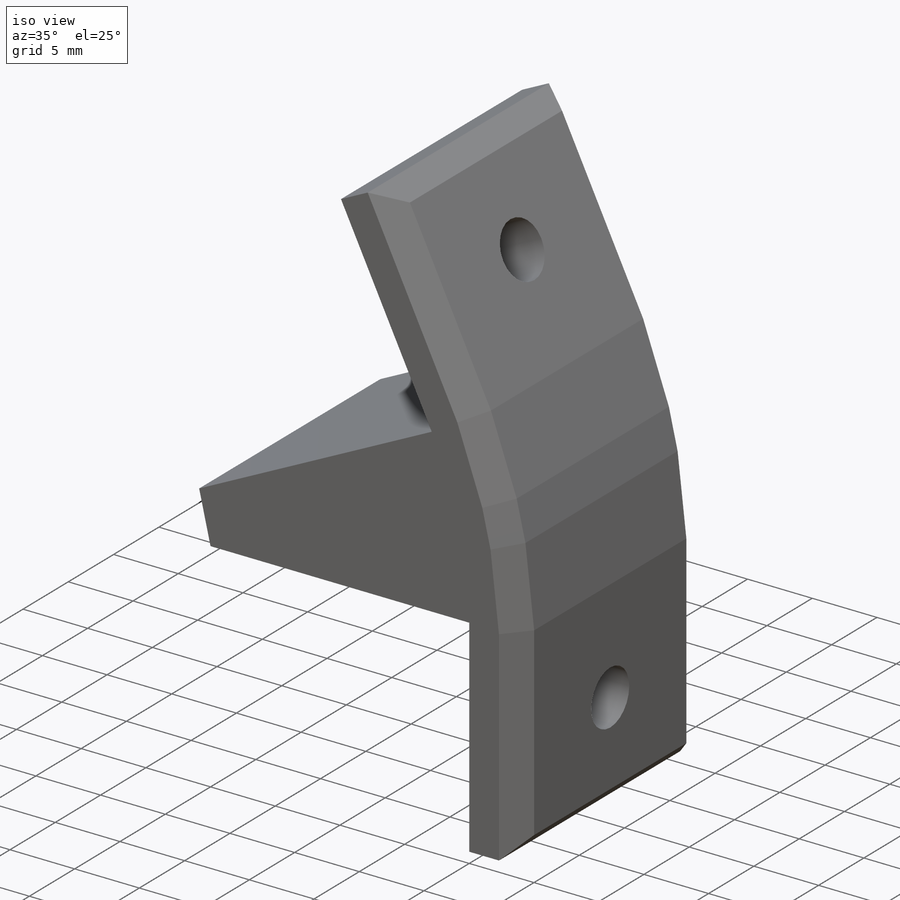
[diagram: iso view]
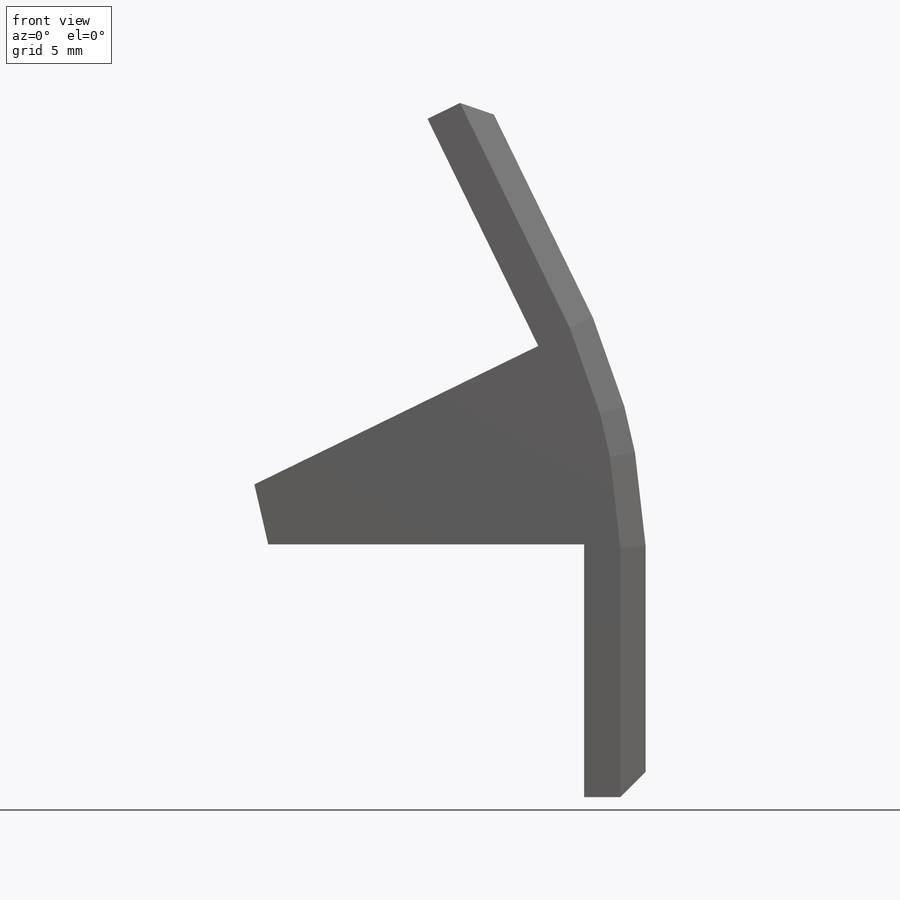
[diagram: front view]
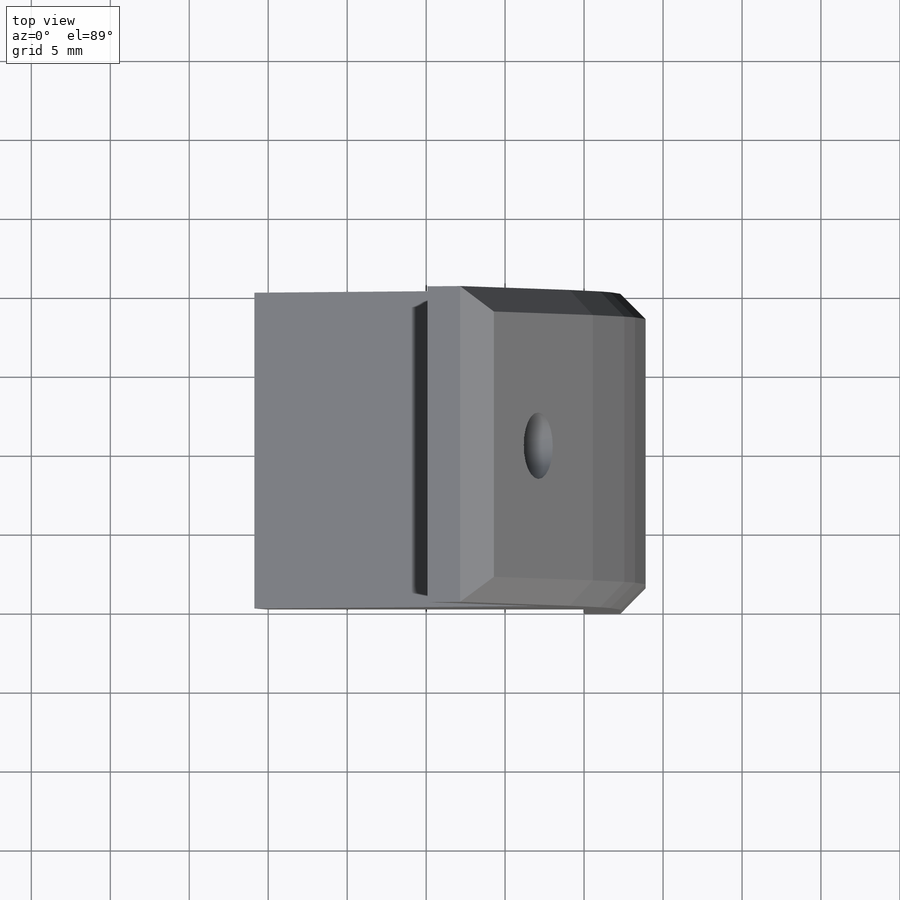
[diagram: top view]
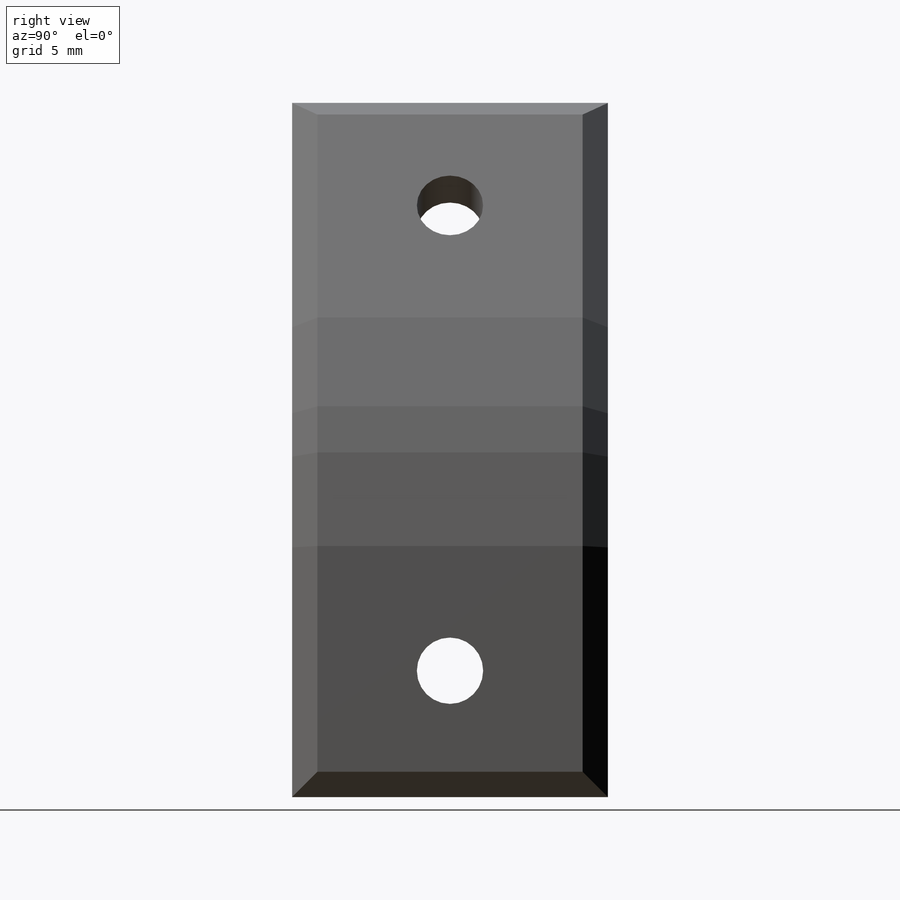
[diagram: right view]
SOLIDWORKS PART (.sldprt)
format: sldprt  version: not decoded by parser v0  size: 237,056 bytes
history: native  units: mm
features: sketch x8, extrude x6, plane x3, chamfer x2, cut_extrude x2, material x1 (+8 scaffold rows collapsed)
feature tree (30):
  scaffold x8  (default folders/planes/origin — collapsed)
  material  "Matériau <non spécifié>"
  plane  "Plan de face"
  plane  "Plan de dessus"
  plane  "Plan de droite"
  sketch  "Esquisse1"  dims[c1.D1=20.0mm c1.D2=20.0mm c1.D3=~15.511335mm c2.D3=26.0deg]
  extrude  "Boss.-Extru.1"  Depth=20mm
  sketch  "Esquisse2"
  extrude  "Boss.-Extru.2"  Depth=2mm
  sketch  "Esquisse3"
  extrude  "Boss.-Extru.3"  Depth=2mm
  sketch  "Esquisse4"
  extrude  "Boss.-Extru.4"  Depth=4mm
  sketch  "Esquisse5"  dims[D1=16.0mm D2=16.0mm]
  extrude  "Boss.-Extru.5"  Depth=20mm
  chamfer  "Chanfrein1"  Distance=3mm
  chamfer  "Chanfrein2"  Distance=1.6mm Angle=45deg
  sketch  "Esquisse7"  dims[D1=4.2mm D2=8.0mm D3=10.0mm]
  cut_extrude  "Enlèv. mat.-Extru.1"  [1 undecoded]
  sketch  "Esquisse8"  dims[D1=4.2mm D2=10.0mm D3=8.0mm]
  cut_extrude  "Enlèv. mat.-Extru.2"  [1 undecoded]
  sketch  "Esquisse9"
  extrude  "Boss.-Extru.6"  Depth=20mm
decode coverage: 12 of 18 modeling features carry decoded parameters
note: ~ marks probable driven/reference dimensions
note: 2 parameter values undecoded
note: suppression state not decoded; provenance and decode notes live in map.json
